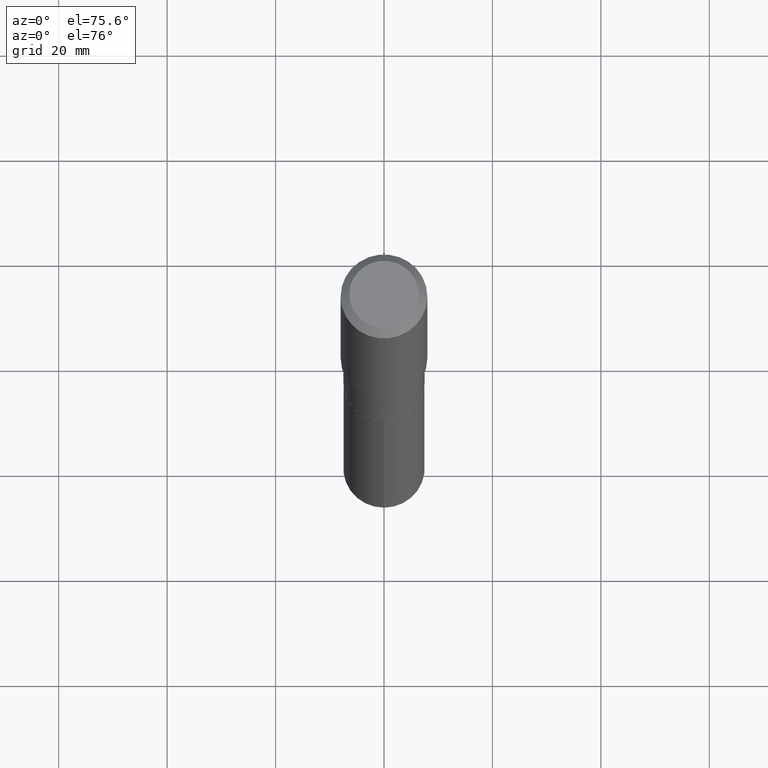
[diagram: clean part render]
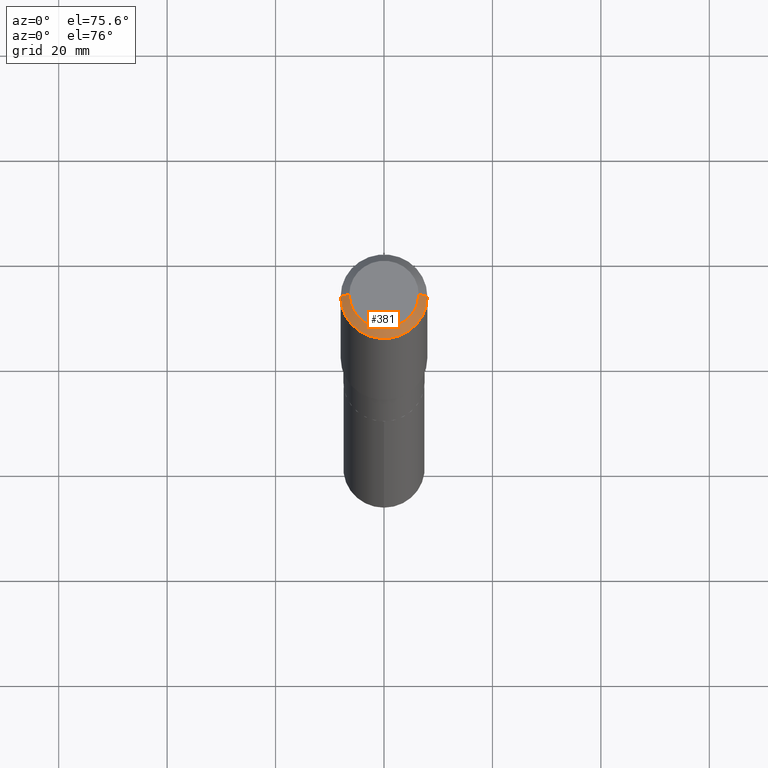
[diagram: same view with one face highlighted and labeled with its STEP entity id]
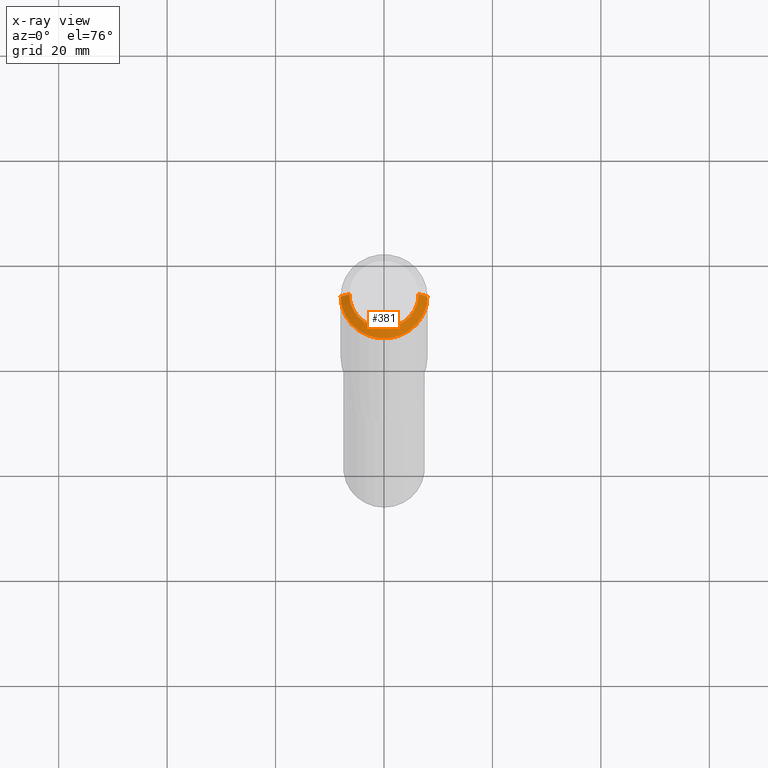
[diagram: x-ray of the same camera — body ghosted, the highlighted face saturated]
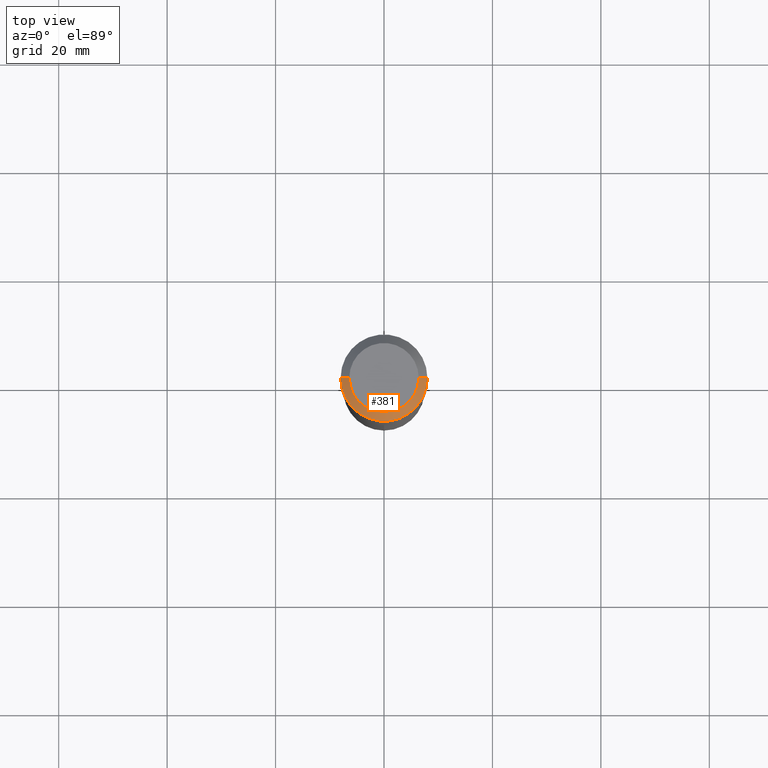
[diagram: same view with one face highlighted and labeled with its STEP entity id]
A machine part, auxiliary view. The second image highlights one B-rep face of the part: STEP entity #381.
The next image is the same camera in x-ray: the body ghosted, the highlighted face saturated — about 0% of this face is hidden behind the body in this view.
A second angle (top view) of the same face is appended — the face is thin or edge-on in the first view.
In plain terms, the highlighted conical surface has half-angle 45 deg.
Its self-contained STEP definition (entity closure, byte-faithful):
#3 = DIRECTION ( 'NONE',  ( -2.445468806185136597E-29, 3.491481338843145583E-15, 1.000000000000000000 ) ) ;
#10 = CARTESIAN_POINT ( 'NONE',  ( 1.540400801016026329E-30, -2.199284095337310135E-16, -0.06299000000000036514 ) ) ;
#25 = ORIENTED_EDGE ( 'NONE', *, *, #128, .T. ) ;
#29 = CONICAL_SURFACE ( 'NONE', #336, 0.3149500000000000077, 0.7853981633974452814 ) ;
#38 = CARTESIAN_POINT ( 'NONE',  ( 0.2519600000000000173, -2.054606664725195058E-15, 3.855188123729206640E-18 ) ) ;
#48 = FACE_OUTER_BOUND ( 'NONE', #473, .T. ) ;
#56 = CARTESIAN_POINT ( 'NONE',  ( -0.2519600000000000173, 1.869391481036695286E-15, 3.855188123703182704E-18 ) ) ;
#75 = DIRECTION ( 'NONE',  ( 1.000000000000000000, -6.982962677686266711E-15, 0.000000000000000000 ) ) ;
#76 = VERTEX_POINT ( 'NONE', #56 ) ;
#82 = DIRECTION ( 'NONE',  ( 2.445468806185136597E-29, -3.491481338843145583E-15, -1.000000000000000000 ) ) ;
#87 = DIRECTION ( 'NONE',  ( 1.000000000000000000, -6.982962677686266711E-15, 4.876115136096691995E-29 ) ) ;
#92 = DIRECTION ( 'NONE',  ( -0.7071067811865453523, 2.468850131082234184E-15, -0.7071067811865496822 ) ) ;
#121 = VERTEX_POINT ( 'NONE', #391 ) ;
#125 = AXIS2_PLACEMENT_3D ( 'NONE', #230, #419, #87 ) ;
#127 = CARTESIAN_POINT ( 'NONE',  ( -0.3149500000000000077, 1.979355685803558833E-15, -0.06299000000000036514 ) ) ;
#128 = EDGE_CURVE ( 'NONE', #76, #121, #318, .T. ) ;
#144 = EDGE_CURVE ( 'NONE', #344, #450, #240, .T. ) ;
#156 = CIRCLE ( 'NONE', #394, 0.3149500000000000077 ) ;
#230 = CARTESIAN_POINT ( 'NONE',  ( -9.427742298522569579E-47, 1.346031739168368629E-32, 3.855188123715871501E-18 ) ) ;
#233 = ORIENTED_EDGE ( 'NONE', *, *, #144, .F. ) ;
#240 = LINE ( 'NONE', #356, #465 ) ;
#269 = ORIENTED_EDGE ( 'NONE', *, *, #477, .F. ) ;
#307 = ORIENTED_EDGE ( 'NONE', *, *, #357, .T. ) ;
#311 = CARTESIAN_POINT ( 'NONE',  ( 1.540400801016026329E-30, -2.199284095337310135E-16, -0.06299000000000036514 ) ) ;
#318 = LINE ( 'NONE', #127, #436 ) ;
#330 = CIRCLE ( 'NONE', #125, 0.2519600000000000173 ) ;
#336 = AXIS2_PLACEMENT_3D ( 'NONE', #311, #82, #459 ) ;
#344 = VERTEX_POINT ( 'NONE', #38 ) ;
#356 = CARTESIAN_POINT ( 'NONE',  ( 0.3149500000000000077, -2.380642253931875190E-15, -0.06299000000000036514 ) ) ;
#357 = EDGE_CURVE ( 'NONE', #121, #450, #156, .T. ) ;
#381 = ADVANCED_FACE ( 'NONE', ( #48 ), #29, .T. ) ;
#391 = CARTESIAN_POINT ( 'NONE',  ( -0.3149500000000000077, -1.119623938781909738E-15, -0.06299000000000036514 ) ) ;
#394 = AXIS2_PLACEMENT_3D ( 'NONE', #10, #3, #75 ) ;
#396 = DIRECTION ( 'NONE',  ( 0.7071067811865453523, -7.319954787623248157E-15, -0.7071067811865496822 ) ) ;
#417 = CARTESIAN_POINT ( 'NONE',  ( 0.3149500000000000077, -2.419212504871020909E-15, -0.06299000000000036514 ) ) ;
#419 = DIRECTION ( 'NONE',  ( -2.445468806185136597E-29, 3.491481338843145583E-15, 1.000000000000000000 ) ) ;
#436 = VECTOR ( 'NONE', #92, 39.37007874015748143 ) ;
#450 = VERTEX_POINT ( 'NONE', #417 ) ;
#459 = DIRECTION ( 'NONE',  ( -1.000000000000000000, 6.982962677686266711E-15, 0.000000000000000000 ) ) ;
#465 = VECTOR ( 'NONE', #396, 39.37007874015748143 ) ;
#473 = EDGE_LOOP ( 'NONE', ( #233, #269, #25, #307 ) ) ;
#477 = EDGE_CURVE ( 'NONE', #76, #344, #330, .T. ) ;